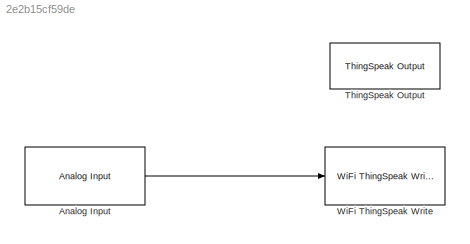
MODEL slx_2e2b15cf59de
KIND model
CONFIG AbsTol = auto
CONFIG EnableMultiTasking = on
CONFIG FixedStep = auto
CONFIG MaxStep = auto
CONFIG MinStep = auto
CONFIG RelTol = 1e-3
CONFIG SampleTimeConstraint = Unconstrained
CONFIG SolverName = FixedStepAuto
CONFIG StartTime = 0.0
CONFIG StopTime = 300.0
BLOCK [Reference] Analog Input  REF=arduinolib/Analog Input
  Ports = [0, 1]
  SourceBlock = arduinolib/Analog Input
  SourceProductBaseCode = ARDUINO
  SourceType = Arduino Analog Input
BLOCK [Reference] ThingSpeak Output  REF=sldrtlib/Internet of Things/ThingSpeak Output
  Ports = [1]
  SourceBlock = sldrtlib/Internet of Things/ThingSpeak Output
  SourceProductBaseCode = WT
  SourceType = Simulink Desktop Real-Time ThingSpeak Output
BLOCK [Reference] WiFi ThingSpeak Write  REF=arduinowifilib/WiFi ThingSpeak Write
  Ports = [1]
  SourceBlock = arduinowifilib/WiFi ThingSpeak Write
  SourceProductBaseCode = ARDUINO
  SourceType = WiFi ThingSpeak Write
LINE Analog Input:1 -> WiFi ThingSpeak Write:1
